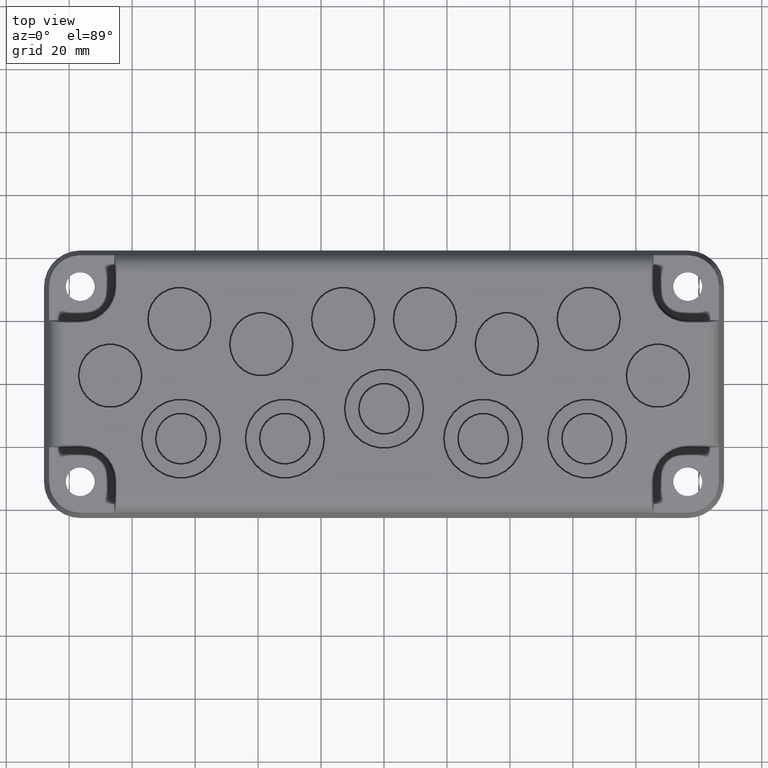
[diagram: clean part render]
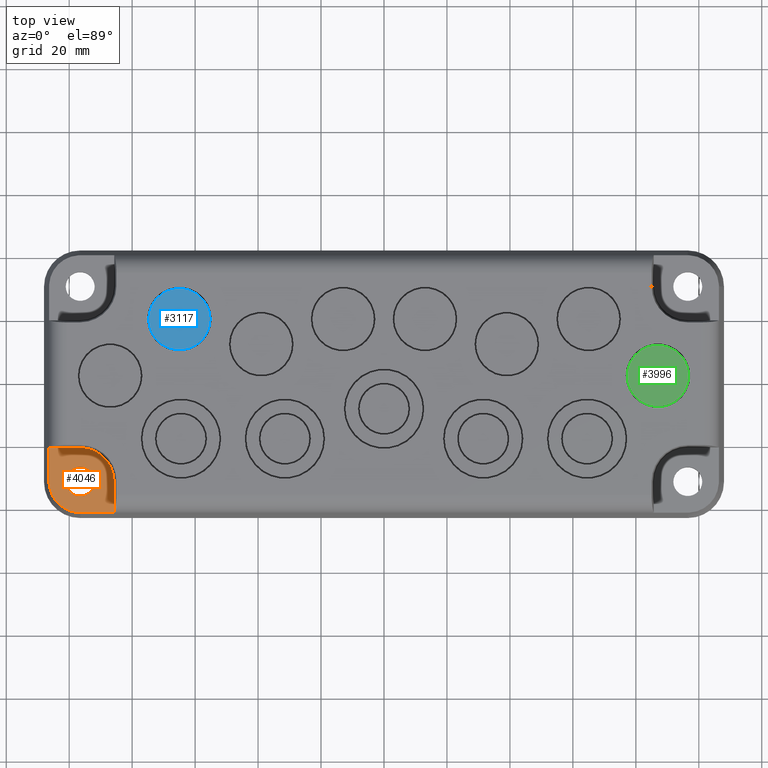
[diagram: same view with three faces highlighted in distinct colors, each labeled with its STEP entity id]
A machine part, top view with three faces highlighted in distinct colors.
Their STEP definitions:

[orange] entity #4046 — the highlighted planar face has unit normal (-0, 0, -1).
#14 = CARTESIAN_POINT ( 'NONE',  ( -97.11127714584783600, -40.87340039730742100, 6.000000000000000000 ) ) ;
#90 = VERTEX_POINT ( 'NONE', #2727 ) ;
#112 = DIRECTION ( 'NONE',  ( 1.000000000000000000, 0.0000000000000000000, 0.0000000000000000000 ) ) ;
#133 = ORIENTED_EDGE ( 'NONE', *, *, #3918, .F. ) ;
#136 = LINE ( 'NONE', #4107, #3651 ) ;
#196 = EDGE_CURVE ( 'NONE', #3101, #4167, #2760, .T. ) ;
#229 = EDGE_LOOP ( 'NONE', ( #133, #2284 ) ) ;
#405 = CIRCLE ( 'NONE', #4513, 4.599999999999992500 ) ;
#642 = EDGE_CURVE ( 'NONE', #1634, #90, #3181, .T. ) ;
#801 = DIRECTION ( 'NONE',  ( 0.0000000000000000000, 0.0000000000000000000, 1.000000000000000000 ) ) ;
#855 = ORIENTED_EDGE ( 'NONE', *, *, #642, .F. ) ;
#929 = AXIS2_PLACEMENT_3D ( 'NONE', #1263, #1575, #3967 ) ;
#931 = ORIENTED_EDGE ( 'NONE', *, *, #2567, .T. ) ;
#959 = DIRECTION ( 'NONE',  ( -1.000000000000000000, 0.0000000000000000000, 0.0000000000000000000 ) ) ;
#1044 = DIRECTION ( 'NONE',  ( -2.238352872228139600E-016, -1.000000000000000000, -0.0000000000000000000 ) ) ;
#1169 = VERTEX_POINT ( 'NONE', #3971 ) ;
#1173 = FACE_BOUND ( 'NONE', #229, .T. ) ;
#1244 = EDGE_CURVE ( 'NONE', #4014, #3061, #405, .T. ) ;
#1263 = CARTESIAN_POINT ( 'NONE',  ( -96.50000000000001400, -30.99999999999996800, 6.000000000000000000 ) ) ;
#1397 = VECTOR ( 'NONE', #1995, 1000.000000000000000 ) ;
#1575 = DIRECTION ( 'NONE',  ( -0.0000000000000000000, -0.0000000000000000000, -1.000000000000000000 ) ) ;
#1606 = CARTESIAN_POINT ( 'NONE',  ( -96.50000000000001400, -20.20530792283392800, 6.000000000000000000 ) ) ;
#1634 = VERTEX_POINT ( 'NONE', #14 ) ;
#1644 = CARTESIAN_POINT ( 'NONE',  ( -96.50000000000001400, -31.00000000000001400, 6.000000000000000000 ) ) ;
#1661 = VECTOR ( 'NONE', #3168, 1000.000000000000000 ) ;
#1694 = CARTESIAN_POINT ( 'NONE',  ( -96.50000000000000000, 30.99999999999998900, 6.000000000000000000 ) ) ;
#1782 = CARTESIAN_POINT ( 'NONE',  ( -106.3734003973073600, -20.20530792283392400, 6.000000000000000000 ) ) ;
#1805 = AXIS2_PLACEMENT_3D ( 'NONE', #1694, #2094, #3981 ) ;
#1828 = CIRCLE ( 'NONE', #3980, 4.599999999999992500 ) ;
#1955 = CARTESIAN_POINT ( 'NONE',  ( -85.70530792283385300, -31.00000000000005700, 6.000000000000000000 ) ) ;
#1992 = CARTESIAN_POINT ( 'NONE',  ( -91.90000000000002000, -31.00000000000001400, 6.000000000000000000 ) ) ;
#1995 = DIRECTION ( 'NONE',  ( -1.206764157201259500E-015, 1.000000000000000000, 0.0000000000000000000 ) ) ;
#2088 = DIRECTION ( 'NONE',  ( 0.0000000000000000000, 0.0000000000000000000, 1.000000000000000000 ) ) ;
#2094 = DIRECTION ( 'NONE',  ( -0.0000000000000000000, 0.0000000000000000000, -1.000000000000000000 ) ) ;
#2155 = VERTEX_POINT ( 'NONE', #1955 ) ;
#2186 = ORIENTED_EDGE ( 'NONE', *, *, #196, .T. ) ;
#2284 = ORIENTED_EDGE ( 'NONE', *, *, #1244, .F. ) ;
#2350 = ORIENTED_EDGE ( 'NONE', *, *, #2961, .T. ) ;
#2365 = EDGE_CURVE ( 'NONE', #2155, #3101, #3342, .T. ) ;
#2567 = EDGE_CURVE ( 'NONE', #4167, #90, #136, .T. ) ;
#2571 = EDGE_LOOP ( 'NONE', ( #855, #2350, #4368, #4550, #2186, #931 ) ) ;
#2727 = CARTESIAN_POINT ( 'NONE',  ( -106.3734003973073600, -31.61127714584940300, 6.000000000000000000 ) ) ;
#2760 = LINE ( 'NONE', #1606, #1661 ) ;
#2779 = DIRECTION ( 'NONE',  ( 1.000000000000000000, 0.0000000000000000000, 0.0000000000000000000 ) ) ;
#2961 = EDGE_CURVE ( 'NONE', #1634, #1169, #4795, .T. ) ;
#3061 = VERTEX_POINT ( 'NONE', #1992 ) ;
#3098 = DIRECTION ( 'NONE',  ( 1.000000000000000000, -0.0000000000000000000, -0.0000000000000000000 ) ) ;
#3101 = VERTEX_POINT ( 'NONE', #3911 ) ;
#3168 = DIRECTION ( 'NONE',  ( -1.000000000000000000, 3.016910393003144300E-016, 0.0000000000000000000 ) ) ;
#3181 = CIRCLE ( 'NONE', #929, 9.892304845413271200 ) ;
#3182 = EDGE_CURVE ( 'NONE', #1169, #2155, #3749, .T. ) ;
#3342 = CIRCLE ( 'NONE', #5003, 10.79469207716612900 ) ;
#3499 = CARTESIAN_POINT ( 'NONE',  ( -97.11127714584783600, -40.87340039730742100, 6.000000000000000000 ) ) ;
#3588 = DIRECTION ( 'NONE',  ( 0.0000000000000000000, 0.0000000000000000000, 1.000000000000000000 ) ) ;
#3610 = CARTESIAN_POINT ( 'NONE',  ( -101.1000000000000100, -31.00000000000001400, 6.000000000000000000 ) ) ;
#3622 = CARTESIAN_POINT ( 'NONE',  ( -96.49999999999997200, -31.00000000000006400, 6.000000000000000000 ) ) ;
#3651 = VECTOR ( 'NONE', #1044, 1000.000000000000000 ) ;
#3749 = LINE ( 'NONE', #4310, #1397 ) ;
#3811 = VECTOR ( 'NONE', #3098, 1000.000000000000000 ) ;
#3911 = CARTESIAN_POINT ( 'NONE',  ( -96.50000000000001400, -20.20530792283393900, 6.000000000000000000 ) ) ;
#3918 = EDGE_CURVE ( 'NONE', #3061, #4014, #1828, .T. ) ;
#3967 = DIRECTION ( 'NONE',  ( -1.000000000000000000, 0.0000000000000000000, 0.0000000000000000000 ) ) ;
#3971 = CARTESIAN_POINT ( 'NONE',  ( -85.70530792283383900, -40.87340039730742100, 6.000000000000000000 ) ) ;
#3980 = AXIS2_PLACEMENT_3D ( 'NONE', #1644, #3588, #2779 ) ;
#3981 = DIRECTION ( 'NONE',  ( -1.000000000000000000, 0.0000000000000000000, 0.0000000000000000000 ) ) ;
#4014 = VERTEX_POINT ( 'NONE', #3610 ) ;
#4046 = ADVANCED_FACE ( 'NONE', ( #1173, #4802 ), #4829, .F. ) ;
#4107 = CARTESIAN_POINT ( 'NONE',  ( -106.3734003973073600, -20.20530792283392800, 6.000000000000000000 ) ) ;
#4167 = VERTEX_POINT ( 'NONE', #1782 ) ;
#4218 = CARTESIAN_POINT ( 'NONE',  ( -96.50000000000001400, -31.00000000000001400, 6.000000000000000000 ) ) ;
#4310 = CARTESIAN_POINT ( 'NONE',  ( -85.70530792283383900, -42.50000000000002800, 6.000000000000000000 ) ) ;
#4368 = ORIENTED_EDGE ( 'NONE', *, *, #3182, .T. ) ;
#4513 = AXIS2_PLACEMENT_3D ( 'NONE', #4218, #801, #112 ) ;
#4550 = ORIENTED_EDGE ( 'NONE', *, *, #2365, .T. ) ;
#4795 = LINE ( 'NONE', #3499, #3811 ) ;
#4802 = FACE_OUTER_BOUND ( 'NONE', #2571, .T. ) ;
#4829 = PLANE ( 'NONE',  #1805 ) ;
#5003 = AXIS2_PLACEMENT_3D ( 'NONE', #3622, #2088, #959 ) ;

[blue] entity #3117 — the highlighted planar face has unit normal (-0, 0, -1).
#59 = EDGE_CURVE ( 'NONE', #1396, #2873, #3772, .T. ) ;
#248 = DIRECTION ( 'NONE',  ( -1.000000000000000000, 0.0000000000000000000, 0.0000000000000000000 ) ) ;
#399 = CIRCLE ( 'NONE', #751, 9.749999999999994700 ) ;
#442 = FACE_OUTER_BOUND ( 'NONE', #1699, .T. ) ;
#751 = AXIS2_PLACEMENT_3D ( 'NONE', #1062, #2576, #248 ) ;
#807 = DIRECTION ( 'NONE',  ( -1.000000000000000000, 0.0000000000000000000, 0.0000000000000000000 ) ) ;
#1062 = CARTESIAN_POINT ( 'NONE',  ( -64.99999999999998600, 20.50000000000002500, 10.00000000000000000 ) ) ;
#1396 = VERTEX_POINT ( 'NONE', #2683 ) ;
#1497 = AXIS2_PLACEMENT_3D ( 'NONE', #1934, #2693, #807 ) ;
#1626 = DIRECTION ( 'NONE',  ( -1.000000000000000000, 0.0000000000000000000, 0.0000000000000000000 ) ) ;
#1699 = EDGE_LOOP ( 'NONE', ( #3889, #2508 ) ) ;
#1934 = CARTESIAN_POINT ( 'NONE',  ( -64.99999999999998600, 20.50000000000002500, 10.00000000000000000 ) ) ;
#2508 = ORIENTED_EDGE ( 'NONE', *, *, #4735, .T. ) ;
#2576 = DIRECTION ( 'NONE',  ( 0.0000000000000000000, 0.0000000000000000000, 1.000000000000000000 ) ) ;
#2683 = CARTESIAN_POINT ( 'NONE',  ( -55.24999999999998600, 20.50000000000002500, 10.00000000000000000 ) ) ;
#2693 = DIRECTION ( 'NONE',  ( 0.0000000000000000000, 0.0000000000000000000, 1.000000000000000000 ) ) ;
#2873 = VERTEX_POINT ( 'NONE', #3381 ) ;
#3117 = ADVANCED_FACE ( 'NONE', ( #442 ), #3925, .F. ) ;
#3381 = CARTESIAN_POINT ( 'NONE',  ( -74.74999999999998600, 20.50000000000002500, 10.00000000000000000 ) ) ;
#3656 = AXIS2_PLACEMENT_3D ( 'NONE', #4651, #4284, #1626 ) ;
#3772 = CIRCLE ( 'NONE', #1497, 9.749999999999994700 ) ;
#3889 = ORIENTED_EDGE ( 'NONE', *, *, #59, .T. ) ;
#3925 = PLANE ( 'NONE',  #3656 ) ;
#4284 = DIRECTION ( 'NONE',  ( -0.0000000000000000000, 0.0000000000000000000, -1.000000000000000000 ) ) ;
#4651 = CARTESIAN_POINT ( 'NONE',  ( -96.50000000000000000, 30.99999999999998900, 10.00000000000000000 ) ) ;
#4735 = EDGE_CURVE ( 'NONE', #2873, #1396, #399, .T. ) ;

[green] entity #3996 — the highlighted planar face has unit normal (-0, 0, -1).
#249 = AXIS2_PLACEMENT_3D ( 'NONE', #3121, #812, #1566 ) ;
#514 = CARTESIAN_POINT ( 'NONE',  ( 77.25000000000000000, 2.500000000000024400, 10.00000000000000000 ) ) ;
#526 = FACE_OUTER_BOUND ( 'NONE', #876, .T. ) ;
#763 = CARTESIAN_POINT ( 'NONE',  ( 96.74999999999998600, 2.500000000000023100, 10.00000000000000000 ) ) ;
#812 = DIRECTION ( 'NONE',  ( 0.0000000000000000000, 0.0000000000000000000, 1.000000000000000000 ) ) ;
#876 = EDGE_LOOP ( 'NONE', ( #4220, #1879 ) ) ;
#964 = DIRECTION ( 'NONE',  ( -0.0000000000000000000, 0.0000000000000000000, -1.000000000000000000 ) ) ;
#1385 = AXIS2_PLACEMENT_3D ( 'NONE', #2468, #3640, #4427 ) ;
#1566 = DIRECTION ( 'NONE',  ( 1.000000000000000000, 0.0000000000000000000, 0.0000000000000000000 ) ) ;
#1662 = PLANE ( 'NONE',  #4042 ) ;
#1773 = CIRCLE ( 'NONE', #1385, 9.749999999999994700 ) ;
#1879 = ORIENTED_EDGE ( 'NONE', *, *, #4433, .T. ) ;
#2468 = CARTESIAN_POINT ( 'NONE',  ( 87.00000000000000000, 2.500000000000023100, 10.00000000000000000 ) ) ;
#2884 = DIRECTION ( 'NONE',  ( -1.000000000000000000, 0.0000000000000000000, 0.0000000000000000000 ) ) ;
#3121 = CARTESIAN_POINT ( 'NONE',  ( 87.00000000000000000, 2.500000000000023100, 10.00000000000000000 ) ) ;
#3343 = VERTEX_POINT ( 'NONE', #763 ) ;
#3542 = CIRCLE ( 'NONE', #249, 9.749999999999994700 ) ;
#3640 = DIRECTION ( 'NONE',  ( 0.0000000000000000000, 0.0000000000000000000, 1.000000000000000000 ) ) ;
#3953 = VERTEX_POINT ( 'NONE', #514 ) ;
#3955 = EDGE_CURVE ( 'NONE', #3343, #3953, #1773, .T. ) ;
#3996 = ADVANCED_FACE ( 'NONE', ( #526 ), #1662, .F. ) ;
#4042 = AXIS2_PLACEMENT_3D ( 'NONE', #4377, #964, #2884 ) ;
#4220 = ORIENTED_EDGE ( 'NONE', *, *, #3955, .T. ) ;
#4377 = CARTESIAN_POINT ( 'NONE',  ( -96.50000000000000000, 30.99999999999998900, 10.00000000000000000 ) ) ;
#4427 = DIRECTION ( 'NONE',  ( 1.000000000000000000, 0.0000000000000000000, 0.0000000000000000000 ) ) ;
#4433 = EDGE_CURVE ( 'NONE', #3953, #3343, #3542, .T. ) ;